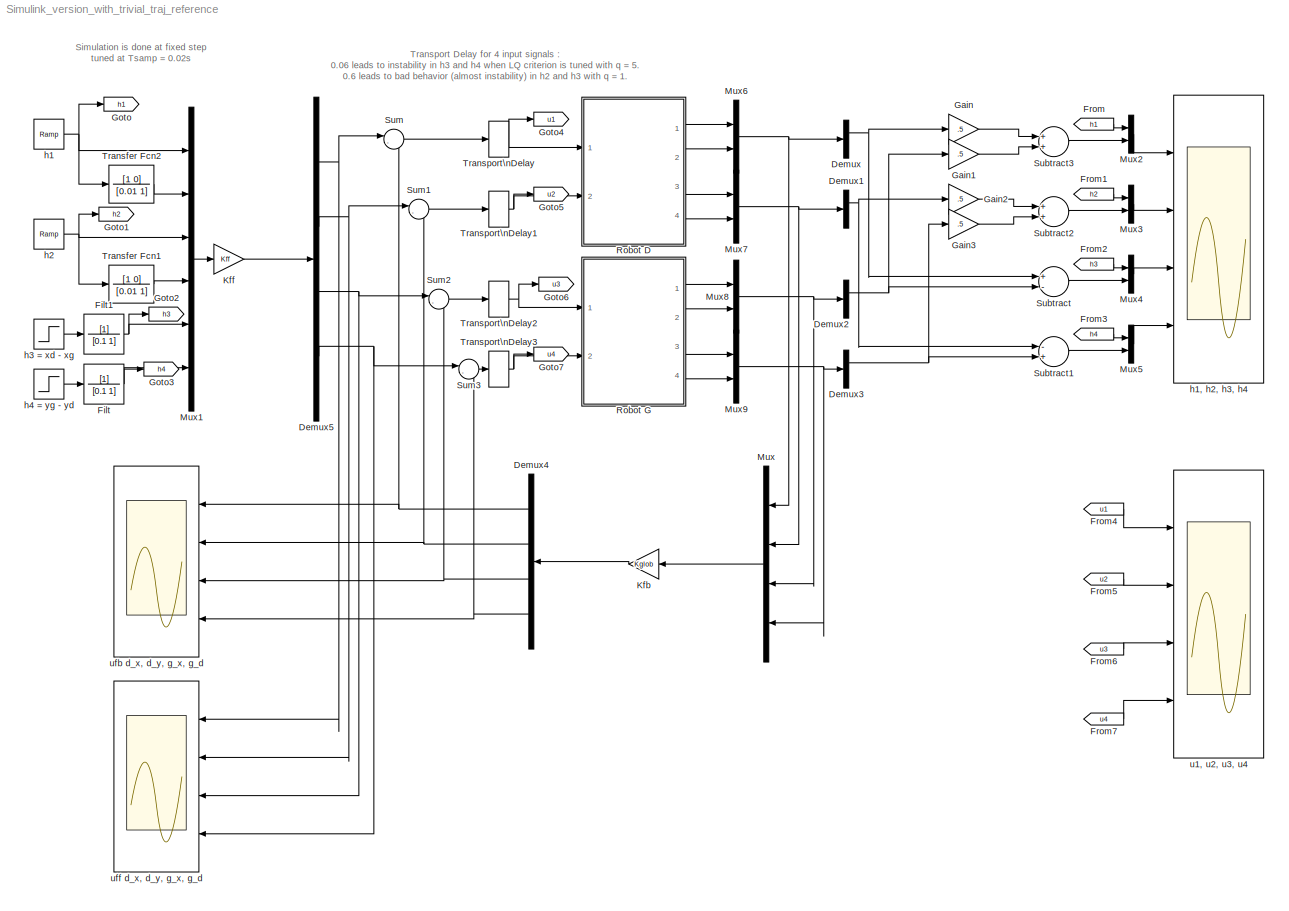
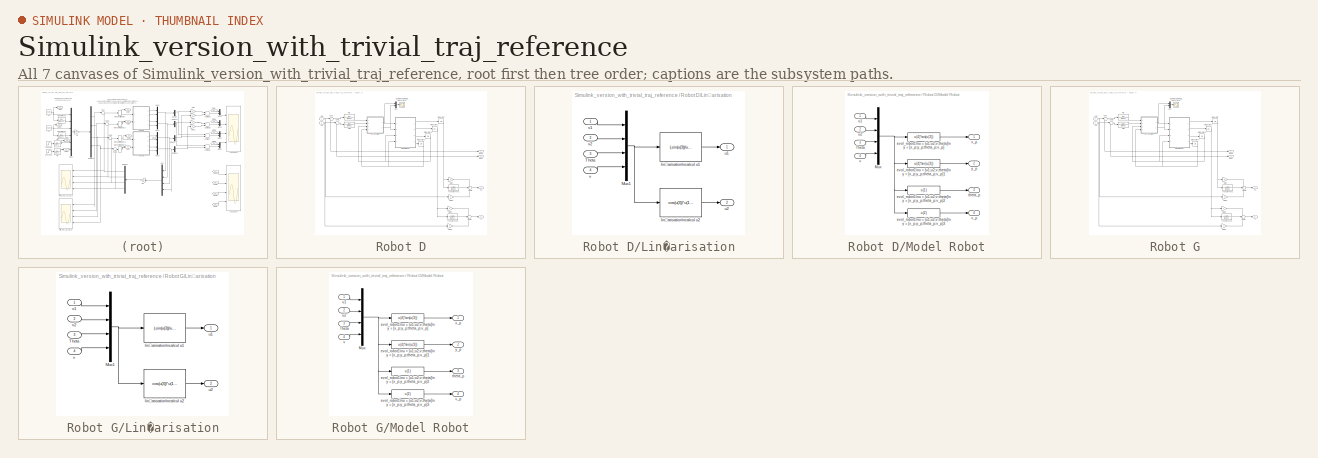
[diagram: thumbnail index - all 7 canvases of the model, root first then tree order]
MODEL Simulink_version_with_trivial_traj_reference
KIND model
BLOCK [Demux] Demux
  DisplayOption = bar
  Outputs = 2
  Ports = [1, 2]
  SID = 13
BLOCK [Demux] Demux1
  DisplayOption = bar
  Outputs = 2
  Ports = [1, 2]
  SID = 15
BLOCK [Demux] Demux2
  DisplayOption = bar
  Outputs = 2
  Ports = [1, 2]
  SID = 16
BLOCK [Demux] Demux3
  DisplayOption = bar
  Outputs = 2
  Ports = [1, 2]
  SID = 17
BLOCK [Demux] Demux4
  DisplayOption = bar
  Ports = [1, 4]
  SID = 23
BLOCK [Demux] Demux5
  DisplayOption = bar
  Ports = [1, 4]
  SID = 29
BLOCK [TransferFcn] Filt
  Denominator = [0.1 1]
  SID = 259
BLOCK [TransferFcn] Filt1
  Denominator = [0.1 1]
  SID = 260
BLOCK [From] From
  GotoTag = h1
  SID = 49
BLOCK [From] From1
  GotoTag = h2
  SID = 50
BLOCK [From] From2
  GotoTag = h3
  SID = 51
BLOCK [From] From3
  GotoTag = h4
  SID = 52
BLOCK [From] From4
  GotoTag = u1
  SID = 67
BLOCK [From] From5
  GotoTag = u2
  SID = 68
BLOCK [From] From6
  GotoTag = u3
  SID = 69
BLOCK [From] From7
  GotoTag = u4
  SID = 70
BLOCK [Gain] Gain
  Gain = .5
  OutDataType = fixdt(1, 16)
  OutDataTypeMode = Inherit via internal rule
  OutDataTypeStr = Inherit: Inherit via internal rule
  OutScaling = 2^0
  ParamDataTypeStr = Inherit: Inherit via internal rule
  ParameterDataType = fixdt(1, 16)
  ParameterDataTypeMode = Inherit via internal rule
  ParameterScaling = 2^0
  SID = 3
  SaturateOnIntegerOverflow = off
BLOCK [Gain] Gain1
  Gain = .5
  OutDataType = fixdt(1, 16)
  OutDataTypeMode = Inherit via internal rule
  OutDataTypeStr = Inherit: Inherit via internal rule
  OutScaling = 2^0
  ParamDataTypeStr = Inherit: Inherit via internal rule
  ParameterDataType = fixdt(1, 16)
  ParameterDataTypeMode = Inherit via internal rule
  ParameterScaling = 2^0
  SID = 10
  SaturateOnIntegerOverflow = off
BLOCK [Gain] Gain2
  Gain = .5
  OutDataType = fixdt(1, 16)
  OutDataTypeMode = Inherit via internal rule
  OutDataTypeStr = Inherit: Inherit via internal rule
  OutScaling = 2^0
  ParamDataTypeStr = Inherit: Inherit via internal rule
  ParameterDataType = fixdt(1, 16)
  ParameterDataTypeMode = Inherit via internal rule
  ParameterScaling = 2^0
  SID = 18
  SaturateOnIntegerOverflow = off
BLOCK [Gain] Gain3
  Gain = .5
  OutDataType = fixdt(1, 16)
  OutDataTypeMode = Inherit via internal rule
  OutDataTypeStr = Inherit: Inherit via internal rule
  OutScaling = 2^0
  ParamDataTypeStr = Inherit: Inherit via internal rule
  ParameterDataType = fixdt(1, 16)
  ParameterDataTypeMode = Inherit via internal rule
  ParameterScaling = 2^0
  SID = 19
  SaturateOnIntegerOverflow = off
BLOCK [Goto] Goto
  GotoTag = h1
  SID = 45
  TagVisibility = local
BLOCK [Goto] Goto1
  GotoTag = h2
  SID = 46
  TagVisibility = local
BLOCK [Goto] Goto2
  GotoTag = h3
  SID = 47
  TagVisibility = local
BLOCK [Goto] Goto3
  GotoTag = h4
  SID = 48
  TagVisibility = local
BLOCK [Goto] Goto4
  GotoTag = u1
  SID = 53
  TagVisibility = local
BLOCK [Goto] Goto5
  GotoTag = u2
  SID = 54
  TagVisibility = local
BLOCK [Goto] Goto6
  GotoTag = u3
  SID = 55
  TagVisibility = local
BLOCK [Goto] Goto7
  GotoTag = u4
  SID = 56
  TagVisibility = local
BLOCK [Gain] Kfb
  Gain = Kglob
  Multiplication = Matrix(K*u)
  OutDataType = fixdt(1, 16)
  OutDataTypeMode = Inherit via internal rule
  OutDataTypeStr = Inherit: Inherit via internal rule
  OutScaling = 2^0
  ParamDataTypeStr = Inherit: Inherit via internal rule
  ParameterDataType = fixdt(1, 16)
  ParameterDataTypeMode = Inherit via internal rule
  ParameterScaling = 2^0
  SID = 22
  SaturateOnIntegerOverflow = off
BLOCK [Gain] Kff
  Gain = Kff
  Multiplication = Matrix(K*u)
  OutDataType = fixdt(1, 16)
  OutDataTypeMode = Inherit via internal rule
  OutDataTypeStr = Inherit: Inherit via internal rule
  OutScaling = 2^0
  ParamDataTypeStr = Inherit: Inherit via internal rule
  ParameterDataType = fixdt(1, 16)
  ParameterDataTypeMode = Inherit via internal rule
  ParameterScaling = 2^0
  SID = 28
  SaturateOnIntegerOverflow = off
BLOCK [Mux] Mux
  DisplayOption = bar
  Ports = [4, 1]
  SID = 21
BLOCK [Mux] Mux1
  DisplayOption = bar
  Inputs = 6
  Ports = [6, 1]
  SID = 30
BLOCK [Mux] Mux2
  DisplayOption = bar
  Inputs = 2
  Ports = [2, 1]
  SID = 40
BLOCK [Mux] Mux3
  DisplayOption = bar
  Inputs = 2
  Ports = [2, 1]
  SID = 42
BLOCK [Mux] Mux4
  DisplayOption = bar
  Inputs = 2
  Ports = [2, 1]
  SID = 43
BLOCK [Mux] Mux5
  DisplayOption = bar
  Inputs = 2
  Ports = [2, 1]
  SID = 44
BLOCK [Mux] Mux6
  DisplayOption = bar
  Inputs = 2
  Ports = [2, 1]
  SID = 152
BLOCK [Mux] Mux7
  DisplayOption = bar
  Inputs = 2
  Ports = [2, 1]
  SID = 153
BLOCK [Mux] Mux8
  DisplayOption = bar
  Inputs = 2
  Ports = [2, 1]
  SID = 156
BLOCK [Mux] Mux9
  DisplayOption = bar
  Inputs = 2
  Ports = [2, 1]
  SID = 157
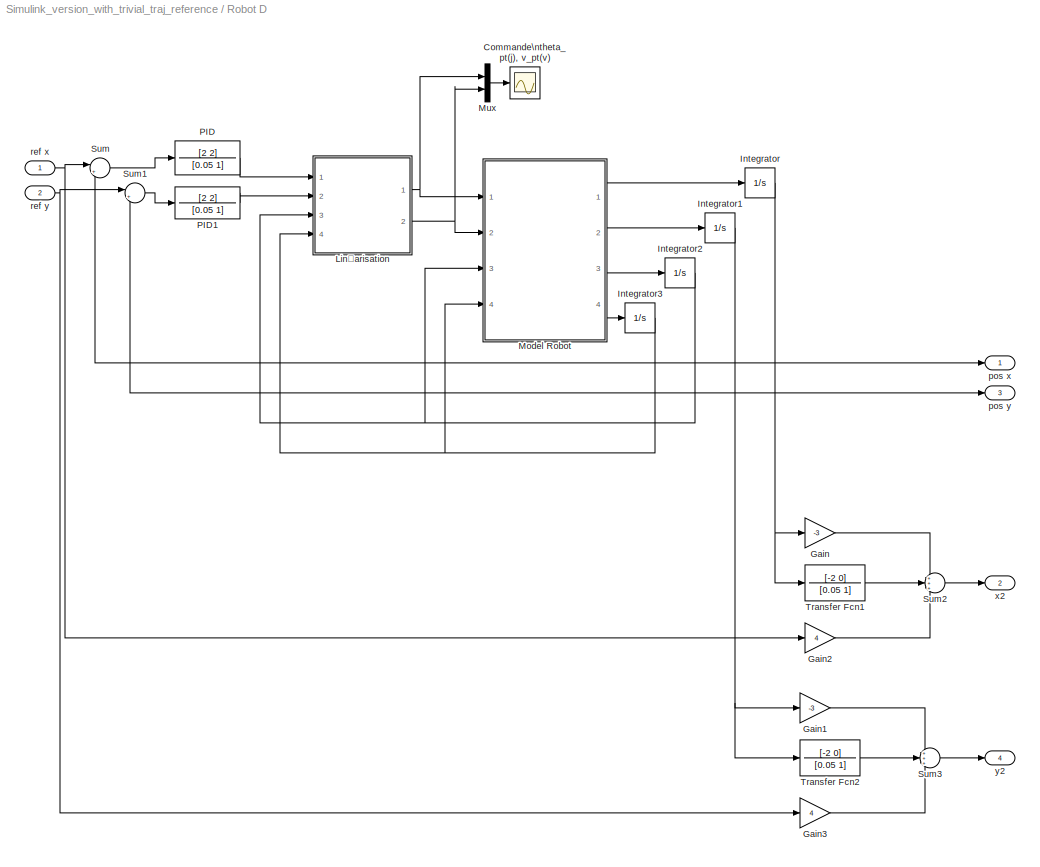
BLOCK [SubSystem] Robot D
  FunctionWithSeparateData = off
  MaskHideContents = off
  MinAlgLoopOccurrences = off
  Opaque = off
  Ports = [2, 4]
  PropExecContextOutsideSubsystem = off
  RTWSystemCode = Auto
  RequestExecContextInheritance = off
  SID = 111
BLOCK [Scope] Robot D/Commande\ntheta_pt(j), v_pt(v)
  DataFormat = StructureWithTime
  Floating = off
  NumInputPorts = 1
  Ports = [1]
  SID = 114
  SampleTime = 0
BLOCK [Gain] Robot D/Gain
  Gain = -3
  OutDataType = fixdt(1, 16)
  OutDataTypeMode = Inherit via internal rule
  OutDataTypeStr = Inherit: Inherit via internal rule
  OutScaling = 2^0
  ParamDataTypeStr = Inherit: Inherit via internal rule
  ParameterDataType = fixdt(1, 16)
  ParameterDataTypeMode = Inherit via internal rule
  ParameterScaling = 2^0
  SID = 199
  SaturateOnIntegerOverflow = off
BLOCK [Gain] Robot D/Gain1
  Gain = -3
  OutDataType = fixdt(1, 16)
  OutDataTypeMode = Inherit via internal rule
  OutDataTypeStr = Inherit: Inherit via internal rule
  OutScaling = 2^0
  ParamDataTypeStr = Inherit: Inherit via internal rule
  ParameterDataType = fixdt(1, 16)
  ParameterDataTypeMode = Inherit via internal rule
  ParameterScaling = 2^0
  SID = 205
  SaturateOnIntegerOverflow = off
BLOCK [Gain] Robot D/Gain2
  Gain = 4
  OutDataType = fixdt(1, 16)
  OutDataTypeMode = Inherit via internal rule
  OutDataTypeStr = Inherit: Inherit via internal rule
  OutScaling = 2^0
  ParamDataTypeStr = Inherit: Inherit via internal rule
  ParameterDataType = fixdt(1, 16)
  ParameterDataTypeMode = Inherit via internal rule
  ParameterScaling = 2^0
  SID = 200
  SaturateOnIntegerOverflow = off
BLOCK [Gain] Robot D/Gain3
  Gain = 4
  OutDataType = fixdt(1, 16)
  OutDataTypeMode = Inherit via internal rule
  OutDataTypeStr = Inherit: Inherit via internal rule
  OutScaling = 2^0
  ParamDataTypeStr = Inherit: Inherit via internal rule
  ParameterDataType = fixdt(1, 16)
  ParameterDataTypeMode = Inherit via internal rule
  ParameterScaling = 2^0
  SID = 206
  SaturateOnIntegerOverflow = off
BLOCK [Integrator] Robot D/Integrator
  Ports = [1, 1]
  SID = 115
BLOCK [Integrator] Robot D/Integrator1
  Ports = [1, 1]
  SID = 116
BLOCK [Integrator] Robot D/Integrator2
  InitialCondition = 1
  Ports = [1, 1]
  SID = 117
BLOCK [Integrator] Robot D/Integrator3
  InitialCondition = 2
  Ports = [1, 1]
  SID = 118
BLOCK [SubSystem] Robot D/Linéarisation
  FunctionWithSeparateData = off
  MaskHideContents = off
  MinAlgLoopOccurrences = off
  Opaque = off
  Ports = [4, 2]
  PropExecContextOutsideSubsystem = off
  RTWSystemCode = Auto
  RequestExecContextInheritance = off
  SID = 119
BLOCK [Mux] Robot D/Linéarisation/Mux1
  DisplayOption = bar
  Ports = [4, 1]
  SID = 124
BLOCK [Inport] Robot D/Linéarisation/Theta
  IconDisplay = Port number
  Port = 3
  SID = 122
BLOCK [Fcn] Robot D/Linéarisation/linéarisation\ncalcul u1
  Expr = (-sin(u(3))/u(4))*u(1)+(cos(u(3))/u(4))*u(2)
  SID = 125
BLOCK [Fcn] Robot D/Linéarisation/linéarisation\ncalcul u2
  Expr = cos(u(3))*u(1)+sin(u(3))*u(2)
  SID = 126
BLOCK [Outport] Robot D/Linéarisation/u1
  IconDisplay = Port number
  SID = 127
BLOCK [Outport] Robot D/Linéarisation/u2
  IconDisplay = Port number
  Port = 2
  SID = 128
BLOCK [Inport] Robot D/Linéarisation/v
  IconDisplay = Port number
  Port = 4
  SID = 123
BLOCK [Inport] Robot D/Linéarisation/v1
  IconDisplay = Port number
  SID = 120
BLOCK [Inport] Robot D/Linéarisation/v2
  IconDisplay = Port number
  Port = 2
  SID = 121
BLOCK [SubSystem] Robot D/Model Robot
  FunctionWithSeparateData = off
  MaskHideContents = off
  MinAlgLoopOccurrences = off
  Opaque = off
  Ports = [4, 4]
  PropExecContextOutsideSubsystem = off
  RTWSystemCode = Auto
  RequestExecContextInheritance = off
  SID = 129
BLOCK [Mux] Robot D/Model Robot/Mux
  DisplayOption = bar
  Ports = [4, 1]
  SID = 134
BLOCK [Inport] Robot D/Model Robot/Theta
  IconDisplay = Port number
  Port = 3
  SID = 132
BLOCK [Fcn] Robot D/Model Robot/evol_robot1\nu = [u1;u2;v;theta]\ny = [x_p;y_p;theta_p;v_p]
  Expr = u(4)*cos(u(3))
  SID = 135
BLOCK [Fcn] Robot D/Model Robot/evol_robot1\nu = [u1;u2;v;theta]\ny = [x_p;y_p;theta_p;v_p]1
  Expr = u(4)*sin(u(3))
  SID = 136
BLOCK [Fcn] Robot D/Model Robot/evol_robot1\nu = [u1;u2;v;theta]\ny = [x_p;y_p;theta_p;v_p]2
  Expr = u(1)
  SID = 137
BLOCK [Fcn] Robot D/Model Robot/evol_robot1\nu = [u1;u2;v;theta]\ny = [x_p;y_p;theta_p;v_p]3
  Expr = u(2)
  SID = 138
BLOCK [Outport] Robot D/Model Robot/theta_p
  IconDisplay = Port number
  Port = 3
  SID = 141
BLOCK [Inport] Robot D/Model Robot/u1
  IconDisplay = Port number
  SID = 130
BLOCK [Inport] Robot D/Model Robot/u2
  IconDisplay = Port number
  Port = 2
  SID = 131
BLOCK [Inport] Robot D/Model Robot/v
  IconDisplay = Port number
  Port = 4
  SID = 133
BLOCK [Outport] Robot D/Model Robot/v_p
  IconDisplay = Port number
  Port = 4
  SID = 142
BLOCK [Outport] Robot D/Model Robot/x_p
  IconDisplay = Port number
  SID = 139
BLOCK [Outport] Robot D/Model Robot/y_p
  IconDisplay = Port number
  Port = 2
  SID = 140
BLOCK [Mux] Robot D/Mux
  DisplayOption = bar
  Inputs = 2
  Ports = [2, 1]
  SID = 143
BLOCK [TransferFcn] Robot D/PID
  Denominator = [0.05 1]
  Numerator = [2 2]
  SID = 154
BLOCK [TransferFcn] Robot D/PID1
  Denominator = [0.05 1]
  Numerator = [2 2]
  SID = 155
BLOCK [Sum] Robot D/Sum
  IconShape = round
  InputSameDT = off
  Inputs = |+-
  OutDataType = fixdt(1, 16)
  OutDataTypeMode = Inherit via internal rule
  OutDataTypeStr = Inherit: Inherit via internal rule
  OutScaling = 2^0
  Ports = [2, 1]
  SID = 146
  SaturateOnIntegerOverflow = off
BLOCK [Sum] Robot D/Sum1
  IconShape = round
  InputSameDT = off
  Inputs = |+-
  OutDataType = fixdt(1, 16)
  OutDataTypeMode = Inherit via internal rule
  OutDataTypeStr = Inherit: Inherit via internal rule
  OutScaling = 2^0
  Ports = [2, 1]
  SID = 147
  SaturateOnIntegerOverflow = off
BLOCK [Sum] Robot D/Sum2
  IconShape = round
  InputSameDT = off
  Inputs = +++
  OutDataType = fixdt(1, 16)
  OutDataTypeMode = Inherit via internal rule
  OutDataTypeStr = Inherit: Inherit via internal rule
  OutScaling = 2^0
  Ports = [3, 1]
  SID = 201
  SaturateOnIntegerOverflow = off
BLOCK [Sum] Robot D/Sum3
  IconShape = round
  InputSameDT = off
  Inputs = +++
  OutDataType = fixdt(1, 16)
  OutDataTypeMode = Inherit via internal rule
  OutDataTypeStr = Inherit: Inherit via internal rule
  OutScaling = 2^0
  Ports = [3, 1]
  SID = 207
  SaturateOnIntegerOverflow = off
BLOCK [TransferFcn] Robot D/Transfer Fcn1
  Denominator = [0.05 1]
  Numerator = [-2 0]
  SID = 202
BLOCK [TransferFcn] Robot D/Transfer Fcn2
  Denominator = [0.05 1]
  Numerator = [-2 0]
  SID = 208
BLOCK [Outport] Robot D/pos x
  IconDisplay = Port number
  SID = 148
BLOCK [Outport] Robot D/pos y
  IconDisplay = Port number
  Port = 3
  SID = 150
BLOCK [Inport] Robot D/ref x
  IconDisplay = Port number
  SID = 112
BLOCK [Inport] Robot D/ref y
  IconDisplay = Port number
  Port = 2
  SID = 113
BLOCK [Outport] Robot D/x2
  IconDisplay = Port number
  Port = 2
  SID = 203
BLOCK [Outport] Robot D/y2
  IconDisplay = Port number
  Port = 4
  SID = 209
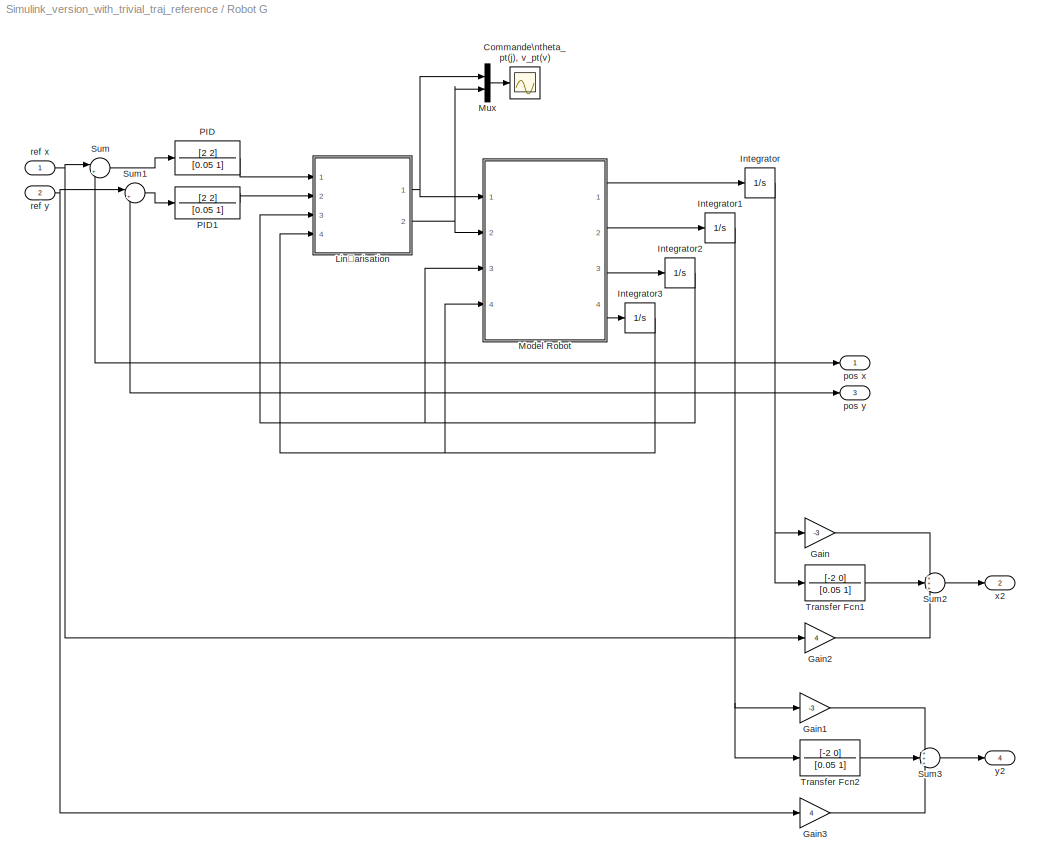
BLOCK [SubSystem] Robot G
  FunctionWithSeparateData = off
  MaskHideContents = off
  MinAlgLoopOccurrences = off
  Opaque = off
  Ports = [2, 4]
  PropExecContextOutsideSubsystem = off
  RTWSystemCode = Auto
  RequestExecContextInheritance = off
  SID = 210
BLOCK [Scope] Robot G/Commande\ntheta_pt(j), v_pt(v)
  DataFormat = StructureWithTime
  Floating = off
  NumInputPorts = 1
  Ports = [1]
  SID = 213
  SampleTime = 0
BLOCK [Gain] Robot G/Gain
  Gain = -3
  OutDataType = fixdt(1, 16)
  OutDataTypeMode = Inherit via internal rule
  OutDataTypeStr = Inherit: Inherit via internal rule
  OutScaling = 2^0
  ParamDataTypeStr = Inherit: Inherit via internal rule
  ParameterDataType = fixdt(1, 16)
  ParameterDataTypeMode = Inherit via internal rule
  ParameterScaling = 2^0
  SID = 214
  SaturateOnIntegerOverflow = off
BLOCK [Gain] Robot G/Gain1
  Gain = -3
  OutDataType = fixdt(1, 16)
  OutDataTypeMode = Inherit via internal rule
  OutDataTypeStr = Inherit: Inherit via internal rule
  OutScaling = 2^0
  ParamDataTypeStr = Inherit: Inherit via internal rule
  ParameterDataType = fixdt(1, 16)
  ParameterDataTypeMode = Inherit via internal rule
  ParameterScaling = 2^0
  SID = 215
  SaturateOnIntegerOverflow = off
BLOCK [Gain] Robot G/Gain2
  Gain = 4
  OutDataType = fixdt(1, 16)
  OutDataTypeMode = Inherit via internal rule
  OutDataTypeStr = Inherit: Inherit via internal rule
  OutScaling = 2^0
  ParamDataTypeStr = Inherit: Inherit via internal rule
  ParameterDataType = fixdt(1, 16)
  ParameterDataTypeMode = Inherit via internal rule
  ParameterScaling = 2^0
  SID = 216
  SaturateOnIntegerOverflow = off
BLOCK [Gain] Robot G/Gain3
  Gain = 4
  OutDataType = fixdt(1, 16)
  OutDataTypeMode = Inherit via internal rule
  OutDataTypeStr = Inherit: Inherit via internal rule
  OutScaling = 2^0
  ParamDataTypeStr = Inherit: Inherit via internal rule
  ParameterDataType = fixdt(1, 16)
  ParameterDataTypeMode = Inherit via internal rule
  ParameterScaling = 2^0
  SID = 217
  SaturateOnIntegerOverflow = off
BLOCK [Integrator] Robot G/Integrator
  Ports = [1, 1]
  SID = 218
BLOCK [Integrator] Robot G/Integrator1
  Ports = [1, 1]
  SID = 219
BLOCK [Integrator] Robot G/Integrator2
  InitialCondition = 1
  Ports = [1, 1]
  SID = 220
BLOCK [Integrator] Robot G/Integrator3
  InitialCondition = 2
  Ports = [1, 1]
  SID = 221
BLOCK [SubSystem] Robot G/Linéarisation
  FunctionWithSeparateData = off
  MaskHideContents = off
  MinAlgLoopOccurrences = off
  Opaque = off
  Ports = [4, 2]
  PropExecContextOutsideSubsystem = off
  RTWSystemCode = Auto
  RequestExecContextInheritance = off
  SID = 222
BLOCK [Mux] Robot G/Linéarisation/Mux1
  DisplayOption = bar
  Ports = [4, 1]
  SID = 227
BLOCK [Inport] Robot G/Linéarisation/Theta
  IconDisplay = Port number
  Port = 3
  SID = 225
BLOCK [Fcn] Robot G/Linéarisation/linéarisation\ncalcul u1
  Expr = (-sin(u(3))/u(4))*u(1)+(cos(u(3))/u(4))*u(2)
  SID = 228
BLOCK [Fcn] Robot G/Linéarisation/linéarisation\ncalcul u2
  Expr = cos(u(3))*u(1)+sin(u(3))*u(2)
  SID = 229
BLOCK [Outport] Robot G/Linéarisation/u1
  IconDisplay = Port number
  SID = 230
BLOCK [Outport] Robot G/Linéarisation/u2
  IconDisplay = Port number
  Port = 2
  SID = 231
BLOCK [Inport] Robot G/Linéarisation/v
  IconDisplay = Port number
  Port = 4
  SID = 226
BLOCK [Inport] Robot G/Linéarisation/v1
  IconDisplay = Port number
  SID = 223
BLOCK [Inport] Robot G/Linéarisation/v2
  IconDisplay = Port number
  Port = 2
  SID = 224
BLOCK [SubSystem] Robot G/Model Robot
  FunctionWithSeparateData = off
  MaskHideContents = off
  MinAlgLoopOccurrences = off
  Opaque = off
  Ports = [4, 4]
  PropExecContextOutsideSubsystem = off
  RTWSystemCode = Auto
  RequestExecContextInheritance = off
  SID = 232
BLOCK [Mux] Robot G/Model Robot/Mux
  DisplayOption = bar
  Ports = [4, 1]
  SID = 237
BLOCK [Inport] Robot G/Model Robot/Theta
  IconDisplay = Port number
  Port = 3
  SID = 235
BLOCK [Fcn] Robot G/Model Robot/evol_robot1\nu = [u1;u2;v;theta]\ny = [x_p;y_p;theta_p;v_p]
  Expr = u(4)*cos(u(3))
  SID = 238
BLOCK [Fcn] Robot G/Model Robot/evol_robot1\nu = [u1;u2;v;theta]\ny = [x_p;y_p;theta_p;v_p]1
  Expr = u(4)*sin(u(3))
  SID = 239
BLOCK [Fcn] Robot G/Model Robot/evol_robot1\nu = [u1;u2;v;theta]\ny = [x_p;y_p;theta_p;v_p]2
  Expr = u(1)
  SID = 240
BLOCK [Fcn] Robot G/Model Robot/evol_robot1\nu = [u1;u2;v;theta]\ny = [x_p;y_p;theta_p;v_p]3
  Expr = u(2)
  SID = 241
BLOCK [Outport] Robot G/Model Robot/theta_p
  IconDisplay = Port number
  Port = 3
  SID = 244
BLOCK [Inport] Robot G/Model Robot/u1
  IconDisplay = Port number
  SID = 233
BLOCK [Inport] Robot G/Model Robot/u2
  IconDisplay = Port number
  Port = 2
  SID = 234
BLOCK [Inport] Robot G/Model Robot/v
  IconDisplay = Port number
  Port = 4
  SID = 236
BLOCK [Outport] Robot G/Model Robot/v_p
  IconDisplay = Port number
  Port = 4
  SID = 245
BLOCK [Outport] Robot G/Model Robot/x_p
  IconDisplay = Port number
  SID = 242
BLOCK [Outport] Robot G/Model Robot/y_p
  IconDisplay = Port number
  Port = 2
  SID = 243
BLOCK [Mux] Robot G/Mux
  DisplayOption = bar
  Inputs = 2
  Ports = [2, 1]
  SID = 246
BLOCK [TransferFcn] Robot G/PID
  Denominator = [0.05 1]
  Numerator = [2 2]
  SID = 247
BLOCK [TransferFcn] Robot G/PID1
  Denominator = [0.05 1]
  Numerator = [2 2]
  SID = 248
BLOCK [Sum] Robot G/Sum
  IconShape = round
  InputSameDT = off
  Inputs = |+-
  OutDataType = fixdt(1, 16)
  OutDataTypeMode = Inherit via internal rule
  OutDataTypeStr = Inherit: Inherit via internal rule
  OutScaling = 2^0
  Ports = [2, 1]
  SID = 249
  SaturateOnIntegerOverflow = off
BLOCK [Sum] Robot G/Sum1
  IconShape = round
  InputSameDT = off
  Inputs = |+-
  OutDataType = fixdt(1, 16)
  OutDataTypeMode = Inherit via internal rule
  OutDataTypeStr = Inherit: Inherit via internal rule
  OutScaling = 2^0
  Ports = [2, 1]
  SID = 250
  SaturateOnIntegerOverflow = off
BLOCK [Sum] Robot G/Sum2
  IconShape = round
  InputSameDT = off
  Inputs = +++
  OutDataType = fixdt(1, 16)
  OutDataTypeMode = Inherit via internal rule
  OutDataTypeStr = Inherit: Inherit via internal rule
  OutScaling = 2^0
  Ports = [3, 1]
  SID = 251
  SaturateOnIntegerOverflow = off
BLOCK [Sum] Robot G/Sum3
  IconShape = round
  InputSameDT = off
  Inputs = +++
  OutDataType = fixdt(1, 16)
  OutDataTypeMode = Inherit via internal rule
  OutDataTypeStr = Inherit: Inherit via internal rule
  OutScaling = 2^0
  Ports = [3, 1]
  SID = 252
  SaturateOnIntegerOverflow = off
BLOCK [TransferFcn] Robot G/Transfer Fcn1
  Denominator = [0.05 1]
  Numerator = [-2 0]
  SID = 253
BLOCK [TransferFcn] Robot G/Transfer Fcn2
  Denominator = [0.05 1]
  Numerator = [-2 0]
  SID = 254
BLOCK [Outport] Robot G/pos x
  IconDisplay = Port number
  SID = 255
BLOCK [Outport] Robot G/pos y
  IconDisplay = Port number
  Port = 3
  SID = 257
BLOCK [Inport] Robot G/ref x
  IconDisplay = Port number
  SID = 211
BLOCK [Inport] Robot G/ref y
  IconDisplay = Port number
  Port = 2
  SID = 212
BLOCK [Outport] Robot G/x2
  IconDisplay = Port number
  Port = 2
  SID = 256
BLOCK [Outport] Robot G/y2
  IconDisplay = Port number
  Port = 4
  SID = 258
BLOCK [Sum] Subtract
  InputSameDT = off
  Inputs = +-
  OutDataType = fixdt(1, 16)
  OutDataTypeMode = Inherit via internal rule
  OutDataTypeStr = Inherit: Inherit via internal rule
  OutScaling = 2^-10
  Ports = [2, 1]
  SID = 4
  SaturateOnIntegerOverflow = off
BLOCK [Sum] Subtract1
  InputSameDT = off
  Inputs = -+
  OutDataType = fixdt(1, 16)
  OutDataTypeMode = Inherit via internal rule
  OutDataTypeStr = Inherit: Inherit via internal rule
  OutScaling = 2^-10
  Ports = [2, 1]
  SID = 5
  SaturateOnIntegerOverflow = off
BLOCK [Sum] Subtract2
  InputSameDT = off
  OutDataType = fixdt(1, 16)
  OutDataTypeMode = Inherit via internal rule
  OutDataTypeStr = Inherit: Inherit via internal rule
  OutScaling = 2^-10
  Ports = [2, 1]
  SID = 6
  SaturateOnIntegerOverflow = off
BLOCK [Sum] Subtract3
  InputSameDT = off
  OutDataType = fixdt(1, 16)
  OutDataTypeMode = Inherit via internal rule
  OutDataTypeStr = Inherit: Inherit via internal rule
  OutScaling = 2^-10
  Ports = [2, 1]
  SID = 7
  SaturateOnIntegerOverflow = off
BLOCK [Sum] Sum
  IconShape = round
  InputSameDT = off
  Inputs = |--
  OutDataType = fixdt(1, 16)
  OutDataTypeMode = Inherit via internal rule
  OutDataTypeStr = Inherit: Inherit via internal rule
  OutScaling = 2^0
  Ports = [2, 1]
  SID = 24
  SaturateOnIntegerOverflow = off
BLOCK [Sum] Sum1
  IconShape = round
  InputSameDT = off
  Inputs = |--
  OutDataType = fixdt(1, 16)
  OutDataTypeMode = Inherit via internal rule
  OutDataTypeStr = Inherit: Inherit via internal rule
  OutScaling = 2^0
  Ports = [2, 1]
  SID = 25
  SaturateOnIntegerOverflow = off
BLOCK [Sum] Sum2
  IconShape = round
  InputSameDT = off
  Inputs = |--
  OutDataType = fixdt(1, 16)
  OutDataTypeMode = Inherit via internal rule
  OutDataTypeStr = Inherit: Inherit via internal rule
  OutScaling = 2^0
  Ports = [2, 1]
  SID = 26
  SaturateOnIntegerOverflow = off
BLOCK [Sum] Sum3
  IconShape = round
  InputSameDT = off
  Inputs = |--
  OutDataType = fixdt(1, 16)
  OutDataTypeMode = Inherit via internal rule
  OutDataTypeStr = Inherit: Inherit via internal rule
  OutScaling = 2^0
  Ports = [2, 1]
  SID = 27
  SaturateOnIntegerOverflow = off
BLOCK [TransferFcn] Transfer Fcn1
  Denominator = [0.01 1]
  Numerator = [1 0]
  SID = 262
BLOCK [TransferFcn] Transfer Fcn2
  Denominator = [0.01 1]
  Numerator = [1 0]
  SID = 261
BLOCK [TransportDelay] Transport\nDelay
  DelayTime = 0.6
  SID = 265
BLOCK [TransportDelay] Transport\nDelay1
  DelayTime = 0.6
  SID = 266
BLOCK [TransportDelay] Transport\nDelay2
  DelayTime = 0.6
  SID = 267
BLOCK [TransportDelay] Transport\nDelay3
  DelayTime = 0.6
  SID = 268
BLOCK [Reference] h1  REF=simulink/Sources/Ramp
  FunctionWithSeparateData = off
  Ports = [0, 1]
  RTWMemSecDataConstants = Inherit from model
  RTWMemSecDataInternal = Inherit from model
  RTWMemSecDataParameters = Inherit from model
  RTWMemSecFuncExecute = Inherit from model
  RTWMemSecFuncInitTerm = Inherit from model
  SID = 35
  ShowPortLabels = FromPortIcon
  SourceBlock = simulink/Sources/Ramp
  SourceType = Ramp
  SystemSampleTime = -1
  VectorParams1D = on
  X0 = 0
  slope = 1
  start = 1
BLOCK [Scope] h1, h2, h3, h4
  DataFormat = StructureWithTime
  Floating = off
  LimitDataPoints = off
  NumInputPorts = 4
  Ports = [4]
  SID = 20
  SampleTime = 0
  YMax = 5~5~5~5
  YMin = -5~-5~-5~-5
BLOCK [Reference] h2  REF=simulink/Sources/Ramp
  FunctionWithSeparateData = off
  Ports = [0, 1]
  RTWMemSecDataConstants = Inherit from model
  RTWMemSecDataInternal = Inherit from model
  RTWMemSecDataParameters = Inherit from model
  RTWMemSecFuncExecute = Inherit from model
  RTWMemSecFuncInitTerm = Inherit from model
  SID = 36
  ShowPortLabels = FromPortIcon
  SourceBlock = simulink/Sources/Ramp
  SourceType = Ramp
  SystemSampleTime = -1
  VectorParams1D = on
  X0 = 0
  slope = 1
  start = 3
BLOCK [Step] h3 = xd - xg
  After = 2
  SID = 31
  SampleTime = 0
  Time = 5
BLOCK [Step] h4 = yg - yd
  After = 2
  SID = 32
  SampleTime = 0
  Time = 5
BLOCK [Scope] u1, u2, u3, u4
  DataFormat = StructureWithTime
  Floating = off
  LimitDataPoints = off
  NumInputPorts = 4
  Ports = [4]
  SID = 71
  SampleTime = 0
  SaveName = ScopeData3
  YMax = 5~5~5~5
  YMin = -5~-5~-5~-5
BLOCK [Scope] ufb d_x, d_y, g_x, g_d
  DataFormat = StructureWithTime
  Floating = off
  LimitDataPoints = off
  NumInputPorts = 4
  Ports = [4]
  SID = 33
  SampleTime = 0
  SaveName = ScopeData1
  YMax = 5~5~5~5
  YMin = -5~-5~-5~-5
BLOCK [Scope] uff d_x, d_y, g_x, g_d
  DataFormat = StructureWithTime
  Floating = off
  LimitDataPoints = off
  NumInputPorts = 4
  Ports = [4]
  SID = 34
  SampleTime = 0
  SaveName = ScopeData2
  YMax = 5~5~5~5
  YMin = -5~-5~-5~-5
  ZoomMode = yonly
ANNOTATION (root): Simulation is done at fixed step\ntuned at Tsamp = 0.02s
ANNOTATION (root): Transport Delay for 4 input signals :\n0.06 leads to instability in h3 and h4 when LQ criterion is tuned with q = 5.\n0.6 leads to bad behavior (almost instability) in h2 and h3 with q = 1.
NET Demux1:1 -> Gain2:1, Subtract1:1
NET Demux2:1 -> Gain1:1, Subtract:2
NET Demux3:1 -> Gain3:1, Subtract1:2
NET Demux4:1 -> Sum:2, ufb d_x, d_y, g_x, g_d:1
NET Demux4:2 -> Sum1:2, ufb d_x, d_y, g_x, g_d:2
NET Demux4:3 -> Sum2:2, ufb d_x, d_y, g_x, g_d:3
NET Demux4:4 -> Sum3:2, ufb d_x, d_y, g_x, g_d:4
NET Demux5:1 -> Sum:1, uff d_x, d_y, g_x, g_d:1
NET Demux5:2 -> Sum1:1, uff d_x, d_y, g_x, g_d:2
NET Demux5:3 -> Sum2:1, uff d_x, d_y, g_x, g_d:3
NET Demux5:4 -> Sum3:1, uff d_x, d_y, g_x, g_d:4
NET Demux:1 -> Gain:1, Subtract:1
NET Filt1:1 -> Goto2:1, Mux1:5
NET Filt:1 -> Goto3:1, Mux1:6
LINE From1:1 -> Mux3:1
LINE From2:1 -> Mux4:1
LINE From3:1 -> Mux5:1
LINE From4:1 -> u1, u2, u3, u4:1
LINE From5:1 -> u1, u2, u3, u4:2
LINE From6:1 -> u1, u2, u3, u4:3
LINE From7:1 -> u1, u2, u3, u4:4
LINE From:1 -> Mux2:1
LINE Gain1:1 -> Subtract3:2
LINE Gain2:1 -> Subtract2:1
LINE Gain3:1 -> Subtract2:2
LINE Gain:1 -> Subtract3:1
LINE Kfb:1 -> Demux4:1
LINE Kff:1 -> Demux5:1
LINE Mux1:1 -> Kff:1
LINE Mux2:1 -> h1, h2, h3, h4:1
LINE Mux3:1 -> h1, h2, h3, h4:2
LINE Mux4:1 -> h1, h2, h3, h4:3
LINE Mux5:1 -> h1, h2, h3, h4:4
NET Mux6:1 -> Demux:1, Mux:1
NET Mux7:1 -> Demux1:1, Mux:2
NET Mux8:1 -> Demux2:1, Mux:3
NET Mux9:1 -> Demux3:1, Mux:4
LINE Mux:1 -> Kfb:1
LINE Robot D/Gain1:1 -> Robot D/Sum3:1
LINE Robot D/Gain2:1 -> Robot D/Sum2:3
LINE Robot D/Gain3:1 -> Robot D/Sum3:3
LINE Robot D/Gain:1 -> Robot D/Sum2:1
NET Robot D/Integrator1:1 -> Robot D/Gain1:1, Robot D/Sum1:2, Robot D/Transfer Fcn2:1, Robot D/pos y:1
NET Robot D/Integrator2:1 -> Robot D/Linéarisation:3, Robot D/Model Robot:3
NET Robot D/Integrator3:1 -> Robot D/Linéarisation:4, Robot D/Model Robot:4
NET Robot D/Integrator:1 -> Robot D/Gain:1, Robot D/Sum:2, Robot D/Transfer Fcn1:1, Robot D/pos x:1
NET Robot D/Linéarisation/Mux1:1 -> Robot D/Linéarisation/linéarisation\ncalcul u1:1, Robot D/Linéarisation/linéarisation\ncalcul u2:1
LINE Robot D/Linéarisation/Theta:1 -> Robot D/Linéarisation/Mux1:3
LINE Robot D/Linéarisation/linéarisation\ncalcul u1:1 -> Robot D/Linéarisation/u1:1
LINE Robot D/Linéarisation/linéarisation\ncalcul u2:1 -> Robot D/Linéarisation/u2:1
LINE Robot D/Linéarisation/v1:1 -> Robot D/Linéarisation/Mux1:1
LINE Robot D/Linéarisation/v2:1 -> Robot D/Linéarisation/Mux1:2
LINE Robot D/Linéarisation/v:1 -> Robot D/Linéarisation/Mux1:4
NET Robot D/Linéarisation:1 -> Robot D/Model Robot:1, Robot D/Mux:1
NET Robot D/Linéarisation:2 -> Robot D/Model Robot:2, Robot D/Mux:2
NET Robot D/Model Robot/Mux:1 -> Robot D/Model Robot/evol_robot1\nu = [u1;u2;v;theta]\ny = [x_p;y_p;theta_p;v_p]1:1, Robot D/Model Robot/evol_robot1\nu = [u1;u2;v;theta]\ny = [x_p;y_p;theta_p;v_p]2:1, Robot D/Model Robot/evol_robot1\nu = [u1;u2;v;theta]\ny = [x_p;y_p;theta_p;v_p]3:1, Robot D/Model Robot/evol_robot1\nu = [u1;u2;v;theta]\ny = [x_p;y_p;theta_p;v_p]:1
LINE Robot D/Model Robot/Theta:1 -> Robot D/Model Robot/Mux:3
LINE Robot D/Model Robot/evol_robot1\nu = [u1;u2;v;theta]\ny = [x_p;y_p;theta_p;v_p]1:1 -> Robot D/Model Robot/y_p:1
LINE Robot D/Model Robot/evol_robot1\nu = [u1;u2;v;theta]\ny = [x_p;y_p;theta_p;v_p]2:1 -> Robot D/Model Robot/theta_p:1
LINE Robot D/Model Robot/evol_robot1\nu = [u1;u2;v;theta]\ny = [x_p;y_p;theta_p;v_p]3:1 -> Robot D/Model Robot/v_p:1
LINE Robot D/Model Robot/evol_robot1\nu = [u1;u2;v;theta]\ny = [x_p;y_p;theta_p;v_p]:1 -> Robot D/Model Robot/x_p:1
LINE Robot D/Model Robot/u1:1 -> Robot D/Model Robot/Mux:1
LINE Robot D/Model Robot/u2:1 -> Robot D/Model Robot/Mux:2
LINE Robot D/Model Robot/v:1 -> Robot D/Model Robot/Mux:4
LINE Robot D/Model Robot:1 -> Robot D/Integrator:1
LINE Robot D/Model Robot:2 -> Robot D/Integrator1:1
LINE Robot D/Model Robot:3 -> Robot D/Integrator2:1
LINE Robot D/Model Robot:4 -> Robot D/Integrator3:1
LINE Robot D/Mux:1 -> Robot D/Commande\ntheta_pt(j), v_pt(v):1
LINE Robot D/PID1:1 -> Robot D/Linéarisation:2
LINE Robot D/PID:1 -> Robot D/Linéarisation:1
LINE Robot D/Sum1:1 -> Robot D/PID1:1
LINE Robot D/Sum2:1 -> Robot D/x2:1
LINE Robot D/Sum3:1 -> Robot D/y2:1
LINE Robot D/Sum:1 -> Robot D/PID:1
LINE Robot D/Transfer Fcn1:1 -> Robot D/Sum2:2
LINE Robot D/Transfer Fcn2:1 -> Robot D/Sum3:2
NET Robot D/ref x:1 -> Robot D/Gain2:1, Robot D/Sum:1
NET Robot D/ref y:1 -> Robot D/Gain3:1, Robot D/Sum1:1
LINE Robot D:1 -> Mux6:1
LINE Robot D:2 -> Mux6:2
LINE Robot D:3 -> Mux7:1
LINE Robot D:4 -> Mux7:2
LINE Robot G/Gain1:1 -> Robot G/Sum3:1
LINE Robot G/Gain2:1 -> Robot G/Sum2:3
LINE Robot G/Gain3:1 -> Robot G/Sum3:3
LINE Robot G/Gain:1 -> Robot G/Sum2:1
NET Robot G/Integrator1:1 -> Robot G/Gain1:1, Robot G/Sum1:2, Robot G/Transfer Fcn2:1, Robot G/pos y:1
NET Robot G/Integrator2:1 -> Robot G/Linéarisation:3, Robot G/Model Robot:3
NET Robot G/Integrator3:1 -> Robot G/Linéarisation:4, Robot G/Model Robot:4
NET Robot G/Integrator:1 -> Robot G/Gain:1, Robot G/Sum:2, Robot G/Transfer Fcn1:1, Robot G/pos x:1
NET Robot G/Linéarisation/Mux1:1 -> Robot G/Linéarisation/linéarisation\ncalcul u1:1, Robot G/Linéarisation/linéarisation\ncalcul u2:1
LINE Robot G/Linéarisation/Theta:1 -> Robot G/Linéarisation/Mux1:3
LINE Robot G/Linéarisation/linéarisation\ncalcul u1:1 -> Robot G/Linéarisation/u1:1
LINE Robot G/Linéarisation/linéarisation\ncalcul u2:1 -> Robot G/Linéarisation/u2:1
LINE Robot G/Linéarisation/v1:1 -> Robot G/Linéarisation/Mux1:1
LINE Robot G/Linéarisation/v2:1 -> Robot G/Linéarisation/Mux1:2
LINE Robot G/Linéarisation/v:1 -> Robot G/Linéarisation/Mux1:4
NET Robot G/Linéarisation:1 -> Robot G/Model Robot:1, Robot G/Mux:1
NET Robot G/Linéarisation:2 -> Robot G/Model Robot:2, Robot G/Mux:2
NET Robot G/Model Robot/Mux:1 -> Robot G/Model Robot/evol_robot1\nu = [u1;u2;v;theta]\ny = [x_p;y_p;theta_p;v_p]1:1, Robot G/Model Robot/evol_robot1\nu = [u1;u2;v;theta]\ny = [x_p;y_p;theta_p;v_p]2:1, Robot G/Model Robot/evol_robot1\nu = [u1;u2;v;theta]\ny = [x_p;y_p;theta_p;v_p]3:1, Robot G/Model Robot/evol_robot1\nu = [u1;u2;v;theta]\ny = [x_p;y_p;theta_p;v_p]:1
LINE Robot G/Model Robot/Theta:1 -> Robot G/Model Robot/Mux:3
LINE Robot G/Model Robot/evol_robot1\nu = [u1;u2;v;theta]\ny = [x_p;y_p;theta_p;v_p]1:1 -> Robot G/Model Robot/y_p:1
LINE Robot G/Model Robot/evol_robot1\nu = [u1;u2;v;theta]\ny = [x_p;y_p;theta_p;v_p]2:1 -> Robot G/Model Robot/theta_p:1
LINE Robot G/Model Robot/evol_robot1\nu = [u1;u2;v;theta]\ny = [x_p;y_p;theta_p;v_p]3:1 -> Robot G/Model Robot/v_p:1
LINE Robot G/Model Robot/evol_robot1\nu = [u1;u2;v;theta]\ny = [x_p;y_p;theta_p;v_p]:1 -> Robot G/Model Robot/x_p:1
LINE Robot G/Model Robot/u1:1 -> Robot G/Model Robot/Mux:1
LINE Robot G/Model Robot/u2:1 -> Robot G/Model Robot/Mux:2
LINE Robot G/Model Robot/v:1 -> Robot G/Model Robot/Mux:4
LINE Robot G/Model Robot:1 -> Robot G/Integrator:1
LINE Robot G/Model Robot:2 -> Robot G/Integrator1:1
LINE Robot G/Model Robot:3 -> Robot G/Integrator2:1
LINE Robot G/Model Robot:4 -> Robot G/Integrator3:1
LINE Robot G/Mux:1 -> Robot G/Commande\ntheta_pt(j), v_pt(v):1
LINE Robot G/PID1:1 -> Robot G/Linéarisation:2
LINE Robot G/PID:1 -> Robot G/Linéarisation:1
LINE Robot G/Sum1:1 -> Robot G/PID1:1
LINE Robot G/Sum2:1 -> Robot G/x2:1
LINE Robot G/Sum3:1 -> Robot G/y2:1
LINE Robot G/Sum:1 -> Robot G/PID:1
LINE Robot G/Transfer Fcn1:1 -> Robot G/Sum2:2
LINE Robot G/Transfer Fcn2:1 -> Robot G/Sum3:2
NET Robot G/ref x:1 -> Robot G/Gain2:1, Robot G/Sum:1
NET Robot G/ref y:1 -> Robot G/Gain3:1, Robot G/Sum1:1
LINE Robot G:1 -> Mux8:1
LINE Robot G:2 -> Mux8:2
LINE Robot G:3 -> Mux9:1
LINE Robot G:4 -> Mux9:2
LINE Subtract1:1 -> Mux5:2
LINE Subtract2:1 -> Mux3:2
LINE Subtract3:1 -> Mux2:2
LINE Subtract:1 -> Mux4:2
LINE Sum1:1 -> Transport\nDelay1:1
LINE Sum2:1 -> Transport\nDelay2:1
LINE Sum3:1 -> Transport\nDelay3:1
LINE Sum:1 -> Transport\nDelay:1
LINE Transfer Fcn1:1 -> Mux1:4
LINE Transfer Fcn2:1 -> Mux1:2
NET Transport\nDelay1:1 -> Goto5:1, Robot D:2
NET Transport\nDelay2:1 -> Goto6:1, Robot G:1
NET Transport\nDelay3:1 -> Goto7:1, Robot G:2
NET Transport\nDelay:1 -> Goto4:1, Robot D:1
NET h1:1 -> Goto:1, Mux1:1, Transfer Fcn2:1
NET h2:1 -> Goto1:1, Mux1:3, Transfer Fcn1:1
LINE h3 = xd - xg:1 -> Filt1:1
LINE h4 = yg - yd:1 -> Filt:1
note: NET lines group one-source signal fan-out (src -> all destinations, sorted); 1:1 wires keep LINE
